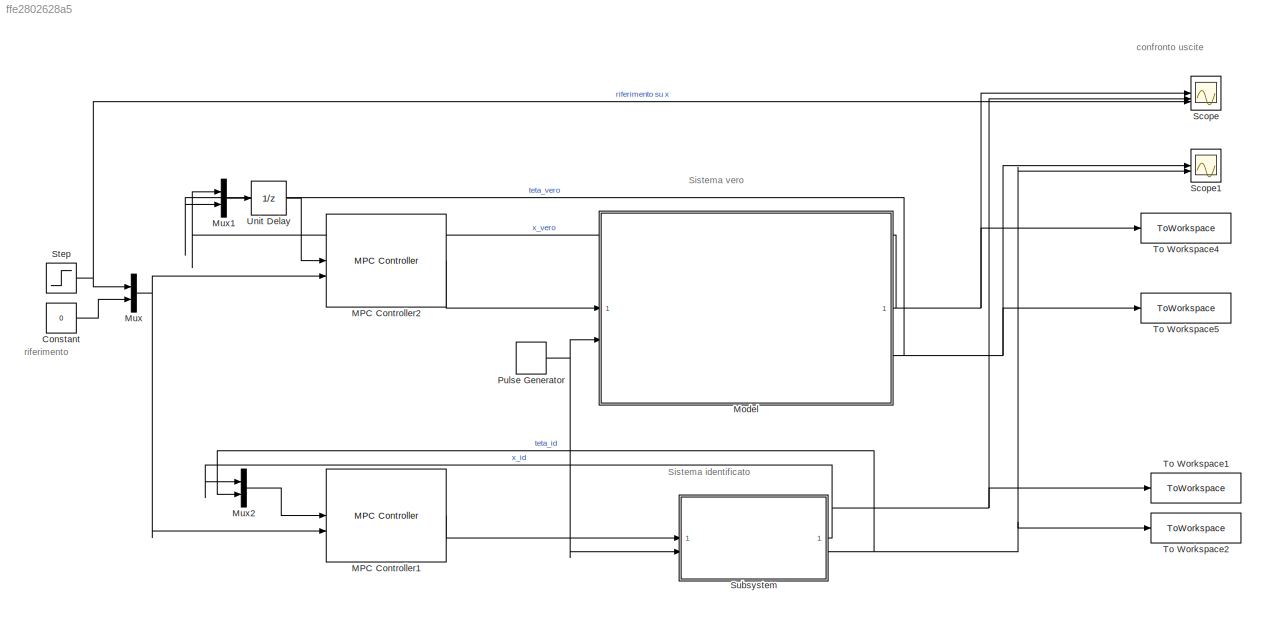
MODEL slx_ffe2802628a5
KIND model
CONFIG AbsTol = auto
CONFIG EnableMultiTasking = off
CONFIG FixedStep = auto
CONFIG MaxStep = auto
CONFIG MinStep = auto
CONFIG RelTol = 1e-3
CONFIG SampleTimeConstraint = Unconstrained
CONFIG SolverName = VariableStepAuto
CONFIG StartTime = 0.0
CONFIG StopTime = 20
BLOCK [Constant] Constant
  Value = 0
BLOCK [Reference] MPC Controller1  REF=mpclib/MPC Controller  (lib defined in mdl_ae329e0e0455)
  SCDEnableBlockLinearizationSpecification = on
  SourceBlock = mpclib/MPC Controller
  SourceType = MPC
BLOCK [Reference] MPC Controller2  REF=mpclib/MPC Controller  (lib defined in mdl_ae329e0e0455)
  SCDEnableBlockLinearizationSpecification = on
  SourceBlock = mpclib/MPC Controller
  SourceType = MPC
BLOCK [ModelReference] Model
  ModelNameDialog = sistema_con_reazione_stato.slx
  ModelReferenceVersion = 9.56
BLOCK [Mux] Mux
  DisplayOption = bar
  Inputs = 2
BLOCK [Mux] Mux1
  DisplayOption = bar
  Inputs = 2
BLOCK [Mux] Mux2
  DisplayOption = bar
  Inputs = 2
BLOCK [DiscretePulseGenerator] Pulse Generator
  Amplitude = imp_amp_d
  Period = 1000
  PhaseDelay = 1
  PulseType = Time based
  PulseWidth = imp_dur_d / 1000 * 100
BLOCK [Scope] Scope
  ActiveDisplayYMaximum = 12.289367914731004
  ActiveDisplayYMinimum = -1.5346786528980929
  Floating = off
  GraphicalSettings = {"Style":{"BackgroundColor":[0.12941176470588237,0.12941176470588237,0.12941176470588237],"AxesColor":[0.07058823529411765,0.07058823529411765,0.07058823529411765],"LabelsColor":[0.8509803921568627,0.8509803921568627,0.8509803921568627],"PreserveColors":false,"Visible":[true,true,false],"LineStyle":["-","-","-"],"LineWidth":[1.5,1.5,1.5],"BarWidth":[0.9,0.9,0.9],"LineColor":["auto","auto","auto"],...<+2277ch>
  MultipleDisplayCache = [{"MaxYLimMag":12.289367914731004,"MaxYLimReal":12.289367914731004,"MinYLimMag":0,"MinYLimReal":-1.5346786528980929,"PlotAsMagnitudePhase":false,"ShowGrid":true,"ShowLegend":true,"Title":"%<SignalLabel>","YLabel":""}]
  NumInputPorts = 3
  ScopeFrameLocation = window
  ShowLegend = on
  Visible = on
  WasSavedAsWebScope = on
  WindowPosition = [67.000000,1.000000,1300.000000,699.000000,]
BLOCK [Scope] Scope1
  ActiveDisplayYMaximum = 1.2464155845609057
  ActiveDisplayYMinimum = -1.1195479560635333
  DataLoggingVariableName = ScopeData1
  Floating = off
  GraphicalSettings = {"Style":{"BackgroundColor":[0.12941176470588237,0.12941176470588237,0.12941176470588237],"AxesColor":[0.07058823529411765,0.07058823529411765,0.07058823529411765],"LabelsColor":[0.8509803921568627,0.8509803921568627,0.8509803921568627],"PreserveColors":false,"Visible":[true,true],"LineStyle":["-","-"],"LineWidth":[1.5,1.5],"BarWidth":[0.9,0.9],"LineColor":["auto","auto"],"LineFaceAlpha":[1,1],"Li...<+2116ch>
  MultipleDisplayCache = [{"MaxYLimMag":1.2464155845609057,"MaxYLimReal":1.2464155845609057,"MinYLimMag":0,"MinYLimReal":-1.1195479560635333,"PlotAsMagnitudePhase":false,"ShowGrid":true,"ShowLegend":true,"Title":"%<SignalLabel>","YLabel":""}]
  NumInputPorts = 2
  ScopeFrameLocation = window
  ShowLegend = on
  WasSavedAsWebScope = on
  WindowPosition = [67.000000,38.000000,1300.000000,699.000000,]
BLOCK [Step] Step
  After = stp_amp_u
  SampleTime = 0
  Time = stp_tim_u
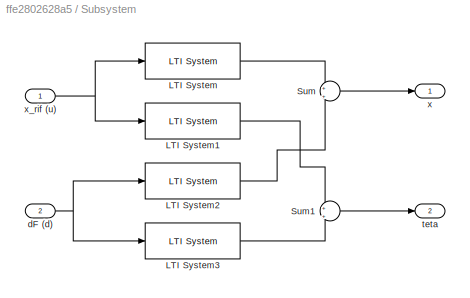
BLOCK [SubSystem] Subsystem
BLOCK [Reference] Subsystem/LTI System  REF=cstblocks/LTI System
  SourceBlock = cstblocks/LTI System
  SourceType = LTI Block
BLOCK [Reference] Subsystem/LTI System1  REF=cstblocks/LTI System
  SourceBlock = cstblocks/LTI System
  SourceType = LTI Block
BLOCK [Reference] Subsystem/LTI System2  REF=cstblocks/LTI System
  SourceBlock = cstblocks/LTI System
  SourceType = LTI Block
BLOCK [Reference] Subsystem/LTI System3  REF=cstblocks/LTI System
  SourceBlock = cstblocks/LTI System
  SourceType = LTI Block
BLOCK [Sum] Subsystem/Sum
  Inputs = +|+
BLOCK [Sum] Subsystem/Sum1
  Inputs = +|+
BLOCK [Inport] Subsystem/dF (d)
  Port = 2
BLOCK [Outport] Subsystem/teta
  Port = 2
BLOCK [Outport] Subsystem/x
BLOCK [Inport] Subsystem/x_rif (u)
BLOCK [ToWorkspace] To Workspace1
  FixptAsFi = on
  MaxDataPoints = inf
  SampleTime = -1
  SaveFormat = Timeseries
  VariableName = x_id_sim
BLOCK [ToWorkspace] To Workspace2
  FixptAsFi = on
  MaxDataPoints = inf
  SampleTime = -1
  SaveFormat = Timeseries
  VariableName = teta_id_sim
BLOCK [ToWorkspace] To Workspace4
  FixptAsFi = on
  MaxDataPoints = inf
  SampleTime = -1
  SaveFormat = Timeseries
  VariableName = x_vero_sim
BLOCK [ToWorkspace] To Workspace5
  FixptAsFi = on
  MaxDataPoints = inf
  SampleTime = -1
  SaveFormat = Timeseries
  VariableName = teta_vero_sim
BLOCK [UnitDelay] Unit Delay
  HasFrameUpgradeWarning = on
  SampleTime = -1
ANNOTATION (root): Sistema identificato
ANNOTATION (root): Sistema vero
ANNOTATION (root): confronto uscite
ANNOTATION (root): riferimento
LINE Constant:1 -> Mux:2
LINE MPC Controller1:1 -> Subsystem:1
LINE MPC Controller2:1 -> Model:1
NET Model:1 -> Mux1:1, Scope:1, To Workspace4:1
NET Model:3 -> Mux1:2, Scope1:1, To Workspace5:1
LINE Mux1:1 -> Unit Delay:1
LINE Mux2:1 -> MPC Controller1:1
NET Mux:1 -> MPC Controller1:2, MPC Controller2:2
NET Pulse Generator:1 -> Model:2, Subsystem:2
NET Step:1 -> Mux:1, Scope:3
LINE Subsystem/LTI System1:1 -> Subsystem/Sum1:1
LINE Subsystem/LTI System2:1 -> Subsystem/Sum:2
LINE Subsystem/LTI System3:1 -> Subsystem/Sum1:2
LINE Subsystem/LTI System:1 -> Subsystem/Sum:1
LINE Subsystem/Sum1:1 -> Subsystem/teta:1
LINE Subsystem/Sum:1 -> Subsystem/x:1
NET Subsystem/dF (d):1 -> Subsystem/LTI System2:1, Subsystem/LTI System3:1
NET Subsystem/x_rif (u):1 -> Subsystem/LTI System1:1, Subsystem/LTI System:1
NET Subsystem:1 -> Mux2:1, Scope:2, To Workspace1:1
NET Subsystem:2 -> Mux2:2, Scope1:2, To Workspace2:1
LINE Unit Delay:1 -> MPC Controller2:1
note: NET lines group one-source signal fan-out (src -> all destinations, sorted); 1:1 wires keep LINE
